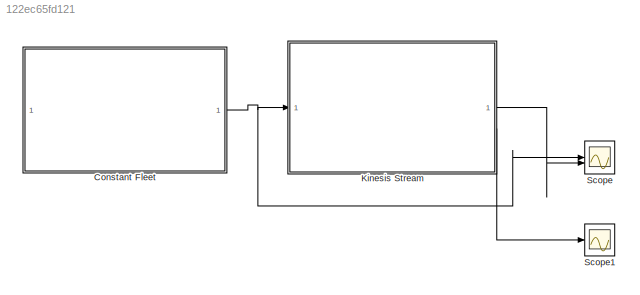
MODEL slx_122ec65fd121
KIND model
CONFIG AbsTol = auto
CONFIG EnableMultiTasking = off
CONFIG FixedStep = auto
CONFIG MaxStep = auto
CONFIG MinStep = auto
CONFIG RelTol = 1e-3
CONFIG SampleTimeConstraint = Unconstrained
CONFIG SolverName = VariableStepAuto
CONFIG StartTime = 0.0
CONFIG StopTime = 20
WORKSPACE source: external: MAT-File  (data not in archive)
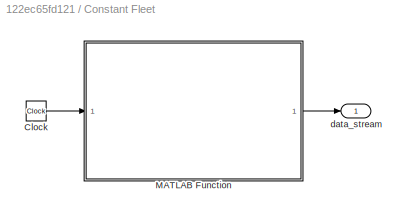
BLOCK [SubSystem] Constant Fleet
  AncestorBlock = VACLib/Vehicle Components/Constant Fleet
  LibrarySourceBlock = VACLib/Vehicle Components/Constant Fleet
BLOCK [Clock] Constant Fleet/Clock
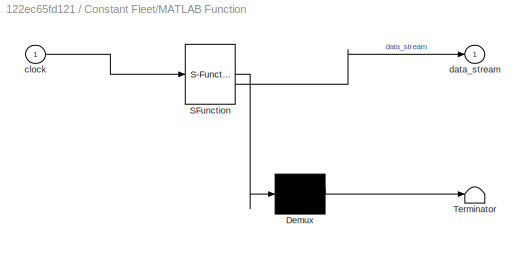
BLOCK [SubSystem] Constant Fleet/MATLAB Function
  ErrorFcn = Stateflow.Translate.translate
  LibrarySourceBlock = simulink/User-Defined\nFunctions/MATLAB Function
  PermitHierarchicalResolution = ExplicitOnly
  SFBlockType = MATLAB Function
  TreatAsAtomicUnit = on
BLOCK [Demux] Constant Fleet/MATLAB Function/ Demux 
  Outputs = 1
BLOCK [S-Function] Constant Fleet/MATLAB Function/ SFunction 
  EnableBusSupport = on
  FunctionName = sf_sfun
  PortCounts = [1 2]
  SFcnIsStateOwnerBlock = off
  SFunctionDeploymentMode = off
  Tag = Stateflow S-Function 2
BLOCK [Terminator] Constant Fleet/MATLAB Function/ Terminator 
BLOCK [Inport] Constant Fleet/MATLAB Function/clock
BLOCK [Outport] Constant Fleet/MATLAB Function/data_stream
BLOCK [Outport] Constant Fleet/data_stream
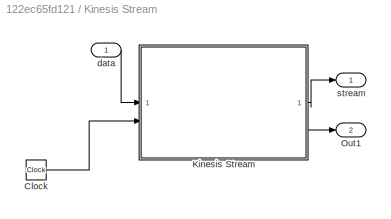
BLOCK [SubSystem] Kinesis Stream
  AncestorBlock = VACLib/AWS Components/Kinesis Stream
  LibrarySourceBlock = VACLib/AWS Components/Kinesis Stream
  ShowPortLabels = none
BLOCK [Clock] Kinesis Stream/Clock
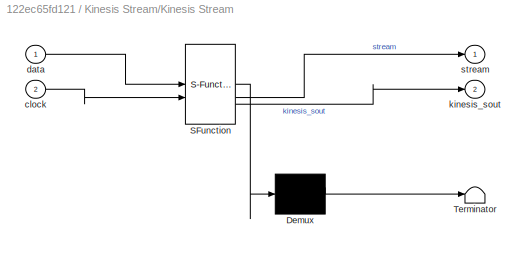
BLOCK [SubSystem] Kinesis Stream/Kinesis Stream
  ErrorFcn = Stateflow.Translate.translate
  LibrarySourceBlock = simulink/User-Defined\nFunctions/MATLAB Function
  PermitHierarchicalResolution = ExplicitOnly
  SFBlockType = MATLAB Function
  TreatAsAtomicUnit = on
BLOCK [Demux] Kinesis Stream/Kinesis Stream/ Demux 
  Outputs = 1
BLOCK [S-Function] Kinesis Stream/Kinesis Stream/ SFunction 
  EnableBusSupport = on
  FunctionName = sf_sfun
  PortCounts = [2 3]
  SFcnIsStateOwnerBlock = off
  SFunctionDeploymentMode = off
  Tag = Stateflow S-Function 18
BLOCK [Terminator] Kinesis Stream/Kinesis Stream/ Terminator 
BLOCK [Inport] Kinesis Stream/Kinesis Stream/clock
  Port = 2
BLOCK [Inport] Kinesis Stream/Kinesis Stream/data
BLOCK [Outport] Kinesis Stream/Kinesis Stream/kinesis_sout
  Port = 2
BLOCK [Outport] Kinesis Stream/Kinesis Stream/stream
BLOCK [Outport] Kinesis Stream/Out1
  Port = 2
BLOCK [Inport] Kinesis Stream/data
BLOCK [Outport] Kinesis Stream/stream
BLOCK [Scope] Scope
  Floating = off
  NumInputPorts = 2
  ScopeSpecificationString = Simulink.scopes.TimeScopeBlockCfg('CurrentConfiguration', extmgr.ConfigurationSet(extmgr.Configuration('Core','General UI',true),extmgr.Configuration('Core','Source UI',true),extmgr.Configuration('Sources','WiredSimulink',true),extmgr.Configuration('Visuals','Time Domain',true,'SerializedDisplays',{struct('MinYLimReal','-1250.00000','MaxYLimReal','11250.00000','YLabelReal','','MinYLimMag','  0.000...<+1739ch>
BLOCK [Scope] Scope1
  Floating = off
  NumInputPorts = 1
  ScopeSpecificationString = Simulink.scopes.TimeScopeBlockCfg('CurrentConfiguration', extmgr.ConfigurationSet(extmgr.Configuration('Core','General UI',true),extmgr.Configuration('Core','Source UI',true),extmgr.Configuration('Sources','WiredSimulink',true,'DataLoggingVariableName','ScopeData1'),extmgr.Configuration('Visuals','Time Domain',true,'SerializedDisplays',{struct('MinYLimReal','-0.625','MaxYLimReal','5.625','YLabelRe...<+1854ch>
NET Constant Fleet:1 -> Kinesis Stream:1, Scope:1
LINE Kinesis Stream:1 -> Scope:2
LINE Kinesis Stream:2 -> Scope1:1
note: NET lines group one-source signal fan-out (src -> all destinations, sorted); 1:1 wires keep LINE
CHART Constant Fleet/MATLAB Function states=1 transitions=1
  STATE_LABEL 'eML_blk_kernel()'
  STATE_LABEL 'SCRIPT:\nfunction data_stream  = fcn(clock)\n\npersistent out;\npersistent last_tick;\npersistent data_to_send;\n\nmessage_size = 0.008;\ncar_cache = 7;\nfleet_size = 10000;\nsimulation_time = 10;\n\nif isempty(out)\n    out = 0;\n    data_to_send = (message_size*fleet_size*simulation_time);\n    last_tick = 0;\nend\n\ntick = clock;\npassed_time = tick-last_tick;\nlast_tick = tick;\n\nsend_this_tick = (data_to_send/sim...<+273ch>'
CHART Kinesis Stream/Kinesis Stream states=1 transitions=1
  STATE_LABEL 'eML_blk_kernel()'
  STATE_LABEL 'SCRIPT:\nfunction [stream, kinesis_sout] = kinesis(data, clock)\n\npersistent received_data;\npersistent accepted_data;\npersistent streamed_data;\npersistent time_passed;\npersistent last_received;\npersistent running_time;\npersistent peak_buffer;\npersistent peak_records;\n\nkinesis_ondemand = 0;\nkinesis_efos = 1;\nkinesis_records = 300;\nkinesis_peak = 0.1;\n\nif isempty(received_data)\n    received_data = 0;\n...<+2727ch>'
CHART  states=0 transitions=0
CHART  states=0 transitions=0
